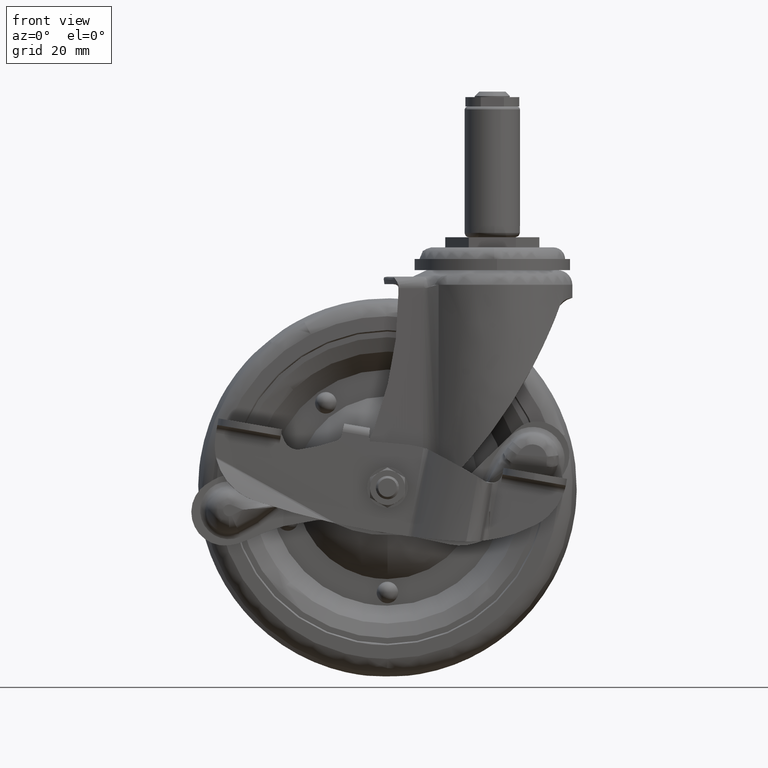
[diagram: clean part render]
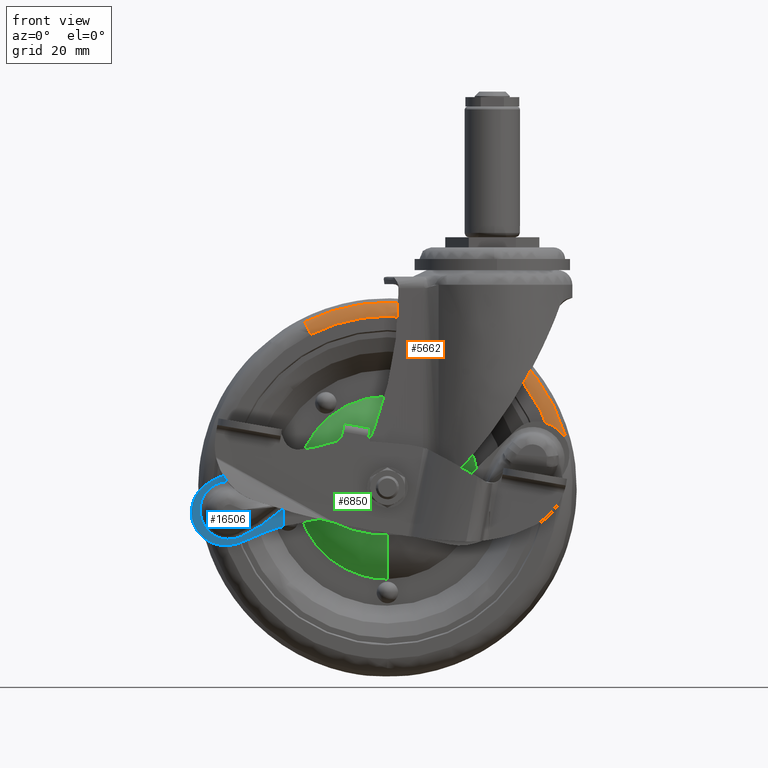
[diagram: same view with three faces highlighted in distinct colors, each labeled with its STEP entity id]
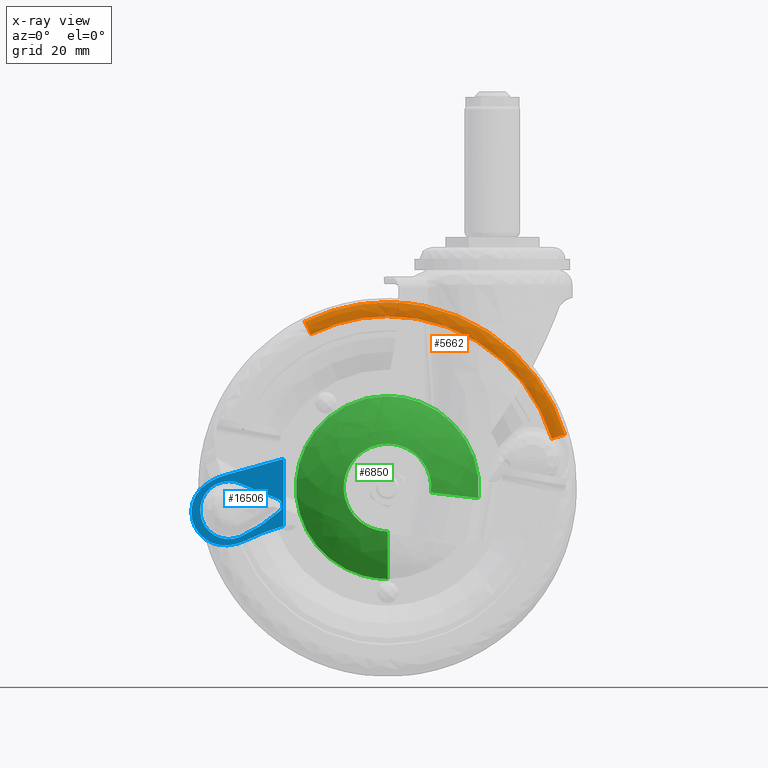
[diagram: x-ray of the same camera — body ghosted, the three highlighted faces saturated]
A machine part, front view with three faces highlighted in distinct colors.
The next image is the same camera in x-ray (body ghosted, the three faces saturated) — at least one of them is partly hidden behind the body in this view.
Their STEP definitions:

[orange] entity #5662 — the highlighted face is a freeform B-spline surface patch.
#5423=CARTESIAN_POINT('',(-64.497286982100661,-9.000000000715319,-29.121572004120289));
#5424=VERTEX_POINT('',#5423);
#5438=CARTESIAN_POINT('',(-36.0,-9.0,-22.382011957491709));
#5439=VERTEX_POINT('',#5438);
#5440=CARTESIAN_POINT('',(-36.0,-9.0,-22.382011957491709));
#5441=CARTESIAN_POINT('',(-51.045590752233466,-9.0,-22.382011957491706));
#5442=CARTESIAN_POINT('',(-64.497286982100661,-9.000000000715319,-29.121572004120296));
#5450=(BOUNDED_CURVE()B_SPLINE_CURVE(2,(#5440,#5441,#5442),.UNSPECIFIED.,.F.,.U.)B_SPLINE_CURVE_WITH_KNOTS((3,3),(0.500000000000000,0.576154610385268),.UNSPECIFIED.)CURVE()GEOMETRIC_REPRESENTATION_ITEM()RATIONAL_B_SPLINE_CURVE((1.0,0.910779324147098,0.875915174757300))REPRESENTATION_ITEM(''));
#5451=EDGE_CURVE('',#5439,#5424,#5450,.T.);
#5453=CARTESIAN_POINT('',(24.979407914093251,-9.000000000585484,-67.867782384672367));
#5454=VERTEX_POINT('',#5453);
#5455=CARTESIAN_POINT('',(24.979407914093255,-9.000000000585484,-67.867782384672381));
#5456=CARTESIAN_POINT('',(11.454080802612422,-9.0,-22.382011957491706));
#5457=CARTESIAN_POINT('',(-36.0,-9.0,-22.382011957491709));
#5465=(BOUNDED_CURVE()B_SPLINE_CURVE(2,(#5455,#5456,#5457),.UNSPECIFIED.,.F.,.U.)B_SPLINE_CURVE_WITH_KNOTS((3,3),(0.298526662064803,0.500000000000000),.UNSPECIFIED.)CURVE()GEOMETRIC_REPRESENTATION_ITEM()RATIONAL_B_SPLINE_CURVE((0.908365862590003,0.763959302188279,1.0))REPRESENTATION_ITEM(''));
#5466=EDGE_CURVE('',#5454,#5439,#5465,.T.);
#5540=CARTESIAN_POINT('',(20.407550364560841,-12.500000000000000,-69.227237622806712));
#5541=VERTEX_POINT('',#5540);
#5542=CARTESIAN_POINT('',(24.979407914093247,-9.000000000585485,-67.867782384672367));
#5543=CARTESIAN_POINT('',(23.924363863457923,-12.499999999917462,-68.181502824512947));
#5544=CARTESIAN_POINT('',(20.407550364560848,-12.500000000000002,-69.227237622806712));
#5552=(BOUNDED_CURVE()B_SPLINE_CURVE(2,(#5542,#5543,#5544),.UNSPECIFIED.,.F.,.U.)B_SPLINE_CURVE_WITH_KNOTS((3,3),(-1.684161954226624,-0.312243930774912),.UNSPECIFIED.)CURVE()GEOMETRIC_REPRESENTATION_ITEM()RATIONAL_B_SPLINE_CURVE((0.901240387114936,0.726972179594655,0.902155872073629))REPRESENTATION_ITEM(''));
#5553=EDGE_CURVE('',#5454,#5541,#5552,.T.);
#5572=CARTESIAN_POINT('',(-62.360737267411167,-12.500000000000000,-33.385977624749259));
#5573=VERTEX_POINT('',#5572);
#5589=CARTESIAN_POINT('',(-64.497286982100661,-9.000000000715319,-29.121572004120285));
#5590=CARTESIAN_POINT('',(-64.004237047657426,-12.499999997344201,-30.105665609368199));
#5591=CARTESIAN_POINT('',(-62.360737267411182,-12.500000000000004,-33.385977624749259));
#5599=(BOUNDED_CURVE()B_SPLINE_CURVE(2,(#5589,#5590,#5591),.UNSPECIFIED.,.F.,.U.)B_SPLINE_CURVE_WITH_KNOTS((3,3),(-1.684161954163533,-0.312243931588529),.UNSPECIFIED.)CURVE()GEOMETRIC_REPRESENTATION_ITEM()RATIONAL_B_SPLINE_CURVE((0.845490514901988,0.682002372882612,0.846349368652953))REPRESENTATION_ITEM(''));
#5600=EDGE_CURVE('',#5424,#5573,#5599,.T.);
#5605=CARTESIAN_POINT('',(25.055707053804252,-8.718326758029756,-67.845094611984450));
#5606=CARTESIAN_POINT('',(6.900613665788685,-8.718326758029756,-6.789387558180201));
#5607=CARTESIAN_POINT('',(-54.155093388015572,-8.718326758029756,-24.944480946195757));
#5608=CARTESIAN_POINT('',(-59.524558392450551,-8.718326758029756,-26.541107098003202));
#5609=CARTESIAN_POINT('',(-64.532933759402326,-8.718326758029754,-29.050398967475168));
#5610=CARTESIAN_POINT('',(24.088798401061197,-12.733445970197851,-68.132607732957084));
#5611=CARTESIAN_POINT('',(6.221218134018271,-12.733445970197849,-8.043809331895890));
#5612=CARTESIAN_POINT('',(-53.867580267042925,-12.733445970197851,-25.911389598938808));
#5613=CARTESIAN_POINT('',(-59.152011743509519,-12.733445970197849,-27.482730782053359));
#5614=CARTESIAN_POINT('',(-64.081071978229289,-12.733445970197852,-29.952284252972131));
#5615=CARTESIAN_POINT('',(20.127400913808597,-12.491450375606691,-69.310540882838438));
#5616=CARTESIAN_POINT('',(3.437753796647032,-12.491450375606691,-13.183139969029847));
#5617=CARTESIAN_POINT('',(-52.689647117161556,-12.491450375606691,-29.872787086191408));
#5618=CARTESIAN_POINT('',(-57.625698627154001,-12.491450375606693,-31.340536465508187));
#5619=CARTESIAN_POINT('',(-62.229807001495246,-12.491450375606689,-33.647282838021724));
#5627=(BOUNDED_SURFACE()B_SPLINE_SURFACE(2,2,((#5605,#5610,#5615),(#5606,#5611,#5616),(#5607,#5612,#5617),(#5608,#5613,#5618),(#5609,#5614,#5619)),.UNSPECIFIED.,.F.,.F.,.U.)B_SPLINE_SURFACE_WITH_KNOTS((3,2,3),(3,3),(0.0,105.537932310919700,118.202472110372200),(0.0,7.205187471859546),.UNSPECIFIED.)GEOMETRIC_REPRESENTATION_ITEM()RATIONAL_B_SPLINE_SURFACE(((0.919521688798256,0.708645109760740,0.920528710436514),(0.650200021597353,0.501087762566505,0.650912093426567),(0.919521688798256,0.708645109760740,0.920528710436514),(0.887203119555566,0.683738251850486,0.888174747250494),(0.862640999533989,0.664809034137964,0.863585727823884)))REPRESENTATION_ITEM('')SURFACE());
#5628=ORIENTED_EDGE('',*,*,#5451,.T.);
#5629=ORIENTED_EDGE('',*,*,#5600,.T.);
#5630=CARTESIAN_POINT('',(-36.0,-12.500000000000000,-27.151707964576509));
#5631=VERTEX_POINT('',#5630);
#5632=CARTESIAN_POINT('',(-36.0,-12.500000000000000,-27.151707964576509));
#5633=CARTESIAN_POINT('',(-49.917565734887262,-12.500000000000005,-27.151707964576502));
#5634=CARTESIAN_POINT('',(-62.360737267411174,-12.499999999999996,-33.385977624749259));
#5642=(BOUNDED_CURVE()B_SPLINE_CURVE(2,(#5632,#5633,#5634),.UNSPECIFIED.,.F.,.U.)B_SPLINE_CURVE_WITH_KNOTS((3,3),(0.500000000000000,0.576154610385368),.UNSPECIFIED.)CURVE()GEOMETRIC_REPRESENTATION_ITEM()RATIONAL_B_SPLINE_CURVE((1.0,0.910779324146980,0.875915174757208))REPRESENTATION_ITEM(''));
#5643=EDGE_CURVE('',#5631,#5573,#5642,.T.);
#5644=ORIENTED_EDGE('',*,*,#5643,.F.);
#5645=CARTESIAN_POINT('',(20.407550364560848,-12.500000000000005,-69.227237622806712));
#5646=CARTESIAN_POINT('',(7.896268337706549,-12.500000000000000,-27.151707964576502));
#5647=CARTESIAN_POINT('',(-36.0,-12.500000000000000,-27.151707964576509));
#5655=(BOUNDED_CURVE()B_SPLINE_CURVE(2,(#5645,#5646,#5647),.UNSPECIFIED.,.F.,.U.)B_SPLINE_CURVE_WITH_KNOTS((3,3),(0.298526662064500,0.500000000000000),.UNSPECIFIED.)CURVE()GEOMETRIC_REPRESENTATION_ITEM()RATIONAL_B_SPLINE_CURVE((0.908365862590437,0.763959302187924,1.0))REPRESENTATION_ITEM(''));
#5656=EDGE_CURVE('',#5541,#5631,#5655,.T.);
#5657=ORIENTED_EDGE('',*,*,#5656,.F.);
#5658=ORIENTED_EDGE('',*,*,#5553,.F.);
#5659=ORIENTED_EDGE('',*,*,#5466,.T.);
#5660=EDGE_LOOP('',(#5628,#5629,#5644,#5657,#5658,#5659));
#5661=FACE_OUTER_BOUND('',#5660,.T.);
#5662=ADVANCED_FACE('',(#5661),#5627,.T.);

[blue] entity #16506 — the highlighted face is a freeform B-spline surface patch.
#8859=CARTESIAN_POINT('',(-73.718794983608205,-14.684033563769120,-88.894457982147799));
#8860=VERTEX_POINT('',#8859);
#8874=CARTESIAN_POINT('',(-79.569680932211199,-15.215931564920400,-86.493897056049192));
#8875=VERTEX_POINT('',#8874);
#8876=CARTESIAN_POINT('',(-79.569680932211199,-15.215931564920400,-86.493897056049192));
#8877=CARTESIAN_POINT('',(-73.718794983608205,-14.684033563769120,-88.894457982147799));
#8878=QUASI_UNIFORM_CURVE('',1,(#8876,#8877),.UNSPECIFIED.,.F.,.U.);
#8879=EDGE_CURVE('',#8875,#8860,#8878,.T.);
#8952=CARTESIAN_POINT('',(-86.795488762817598,-15.872822294899599,-83.558419318397299));
#8953=VERTEX_POINT('',#8952);
#8981=CARTESIAN_POINT('',(-86.795488762817641,-15.872822294899571,-83.558419318397384));
#8982=CARTESIAN_POINT('',(-83.188695259517772,-15.544932421156831,-85.009051092302855));
#8983=CARTESIAN_POINT('',(-79.569680932211185,-15.215931564920380,-86.493897056049221));
#8991=(BOUNDED_CURVE()B_SPLINE_CURVE(2,(#8981,#8982,#8983),.UNSPECIFIED.,.F.,.U.)CURVE()GEOMETRIC_REPRESENTATION_ITEM()QUASI_UNIFORM_CURVE()RATIONAL_B_SPLINE_CURVE((1.0,0.999155433929784,1.0))REPRESENTATION_ITEM(''));
#8992=EDGE_CURVE('',#8953,#8875,#8991,.T.);
#9077=CARTESIAN_POINT('',(-72.983285543542593,-14.617169159910400,-93.054666504507694));
#9078=VERTEX_POINT('',#9077);
#9092=CARTESIAN_POINT('',(-73.718794983608319,-14.684033563769150,-88.894457982147799));
#9093=CARTESIAN_POINT('',(-72.445533718338098,-14.568282696654357,-89.416864549114351));
#9094=CARTESIAN_POINT('',(-72.205931136643102,-14.546500673317411,-90.772111195925348));
#9095=CARTESIAN_POINT('',(-71.966328554948092,-14.524718649980477,-92.127357842736345));
#9096=CARTESIAN_POINT('',(-72.983285543542593,-14.617169159910400,-93.054666504507694));
#9104=(BOUNDED_CURVE()B_SPLINE_CURVE(2,(#9092,#9093,#9094,#9095,#9096),.UNSPECIFIED.,.F.,.U.)B_SPLINE_CURVE_WITH_KNOTS((3,2,3),(0.0,0.500000000000000,1.0),.UNSPECIFIED.)CURVE()GEOMETRIC_REPRESENTATION_ITEM()RATIONAL_B_SPLINE_CURVE((1.0,0.876028798369927,1.0,0.876028798369927,1.0))REPRESENTATION_ITEM(''));
#9105=EDGE_CURVE('',#8860,#9078,#9104,.T.);
#9424=CARTESIAN_POINT('',(-86.502124005019397,-15.846152807637001,-101.888053421124990));
#9425=VERTEX_POINT('',#9424);
#9442=CARTESIAN_POINT('',(-86.502124005019397,-15.846152807637001,-101.888053421124990));
#9443=CARTESIAN_POINT('',(-86.876736583095720,-15.880208450361071,-102.052962688001100));
#9444=CARTESIAN_POINT('',(-87.258240291538911,-15.914890558632390,-102.193169583015500));
#9445=CARTESIAN_POINT('',(-88.034635705399779,-15.985471864158299,-102.425583377874900));
#9446=CARTESIAN_POINT('',(-88.429528573737755,-16.021371167132749,-102.517788278129900));
#9447=CARTESIAN_POINT('',(-89.032081073962061,-16.076148592854839,-102.619481553386900));
#9448=CARTESIAN_POINT('',(-89.235204171976278,-16.094614303991669,-102.647293392677500));
#9449=CARTESIAN_POINT('',(-89.640204539545962,-16.131432469286320,-102.689962256502100));
#9450=CARTESIAN_POINT('',(-89.842477633537669,-16.149820907435000,-102.704922160538300));
#9451=CARTESIAN_POINT('',(-90.448629332651151,-16.204925532612300,-102.731062476650710));
#9452=CARTESIAN_POINT('',(-90.851842800816115,-16.241581252726871,-102.723572150543700));
#9453=CARTESIAN_POINT('',(-91.656505744907676,-16.314732330242741,-102.659075324394910));
#9454=CARTESIAN_POINT('',(-92.057955441143093,-16.351227707672109,-102.602075008539000));
#9455=CARTESIAN_POINT('',(-92.859020931901412,-16.424051744419451,-102.436595807817700));
#9456=CARTESIAN_POINT('',(-93.250618325102351,-16.459651459151441,-102.329745667607500));
#9457=CARTESIAN_POINT('',(-94.015385242609042,-16.529175630079010,-102.070006275160200));
#9458=CARTESIAN_POINT('',(-94.388768176760550,-16.563119487143361,-101.917066309803500));
#9459=CARTESIAN_POINT('',(-94.935275361228165,-16.612801891071019,-101.652880684141000));
#9460=CARTESIAN_POINT('',(-95.115176986261346,-16.629156562072911,-101.559006884438400));
#9461=CARTESIAN_POINT('',(-95.470355995417862,-16.661445519109641,-101.359406366781500));
#9462=CARTESIAN_POINT('',(-95.646100971519104,-16.677422313448449,-101.253340372070300));
#9463=CARTESIAN_POINT('',(-96.159538709564742,-16.724098408142670,-100.921318031646390));
#9464=CARTESIAN_POINT('',(-96.485318827841297,-16.753714742360831,-100.680722798303710));
#9465=CARTESIAN_POINT('',(-97.104800508634540,-16.810031182410800,-100.162139700769200));
#9466=CARTESIAN_POINT('',(-97.398500512013968,-16.836731146503070,-99.884150019156280));
#9467=CARTESIAN_POINT('',(-97.814595816240285,-16.874557941034809,-99.438659674717059));
#9468=CARTESIAN_POINT('',(-97.949207256836829,-16.886795328127011,-99.285398855089497));
#9469=CARTESIAN_POINT('',(-98.210046026617547,-16.910507911398650,-98.969104207804079));
#9470=CARTESIAN_POINT('',(-98.334959988333026,-16.921863710697419,-98.807657975516534));
#9471=CARTESIAN_POINT('',(-98.693318008006088,-16.954441668298209,-98.314031358512977));
#9472=CARTESIAN_POINT('',(-98.910569164617755,-16.974191746656370,-97.972438230887363));
#9473=CARTESIAN_POINT('',(-99.302515563688701,-17.009823189151689,-97.264669210795006));
#9474=CARTESIAN_POINT('',(-99.477212445298591,-17.025704702302331,-96.898494265196788));
#9475=CARTESIAN_POINT('',(-99.706447663542164,-17.046544239331130,-96.330278827194022));
#9476=CARTESIAN_POINT('',(-99.777525093805266,-17.053005815136238,-96.137157455083255));
#9477=CARTESIAN_POINT('',(-99.906784510494390,-17.064756655260439,-95.749515729699851));
#9478=CARTESIAN_POINT('',(-99.965192087170237,-17.070066427756242,-95.554528286354198));
#9479=CARTESIAN_POINT('',(-100.122119147353000,-17.084332504786449,-94.966135721209753));
#9480=CARTESIAN_POINT('',(-100.202409872590100,-17.091631651725869,-94.569312909481553));
#9481=CARTESIAN_POINT('',(-100.314628802853410,-17.101833358821629,-93.766599850062661));
#9482=CARTESIAN_POINT('',(-100.346563166891100,-17.104736478887361,-93.360710757118284));
#9483=CARTESIAN_POINT('',(-100.360137672009800,-17.105970523133429,-92.539502962434298));
#9484=CARTESIAN_POINT('',(-100.341651888566600,-17.104289999645282,-92.131021200484710));
#9485=CARTESIAN_POINT('',(-100.276623168276800,-17.098378305819178,-91.521764458767549));
#9486=CARTESIAN_POINT('',(-100.248712586901500,-17.095840983681139,-91.319239417606525));
#9487=CARTESIAN_POINT('',(-100.180310006351310,-17.089622575701931,-90.915320550309545));
#9488=CARTESIAN_POINT('',(-100.139722064879710,-17.085932767845609,-90.713672870263494));
#9489=CARTESIAN_POINT('',(-100.000468058812000,-17.073273329919392,-90.117109308082192));
#9490=CARTESIAN_POINT('',(-99.884088557483537,-17.062693389603449,-89.728380887494822));
#9491=CARTESIAN_POINT('',(-99.605458129827042,-17.037363385082379,-88.968421611426436));
#9492=CARTESIAN_POINT('',(-99.443205963137814,-17.022613208117299,-88.597191229078675));
#9493=CARTESIAN_POINT('',(-99.211168729600487,-17.001518942770929,-88.144299935339120));
#9494=CARTESIAN_POINT('',(-99.163294991774464,-16.997166790689850,-88.054280990462701));
#9495=CARTESIAN_POINT('',(-99.064579738869526,-16.988192688961579,-87.875375153522967));
#9496=CARTESIAN_POINT('',(-99.013667752026038,-16.983564332799009,-87.786370288585061));
#9497=CARTESIAN_POINT('',(-98.856908691043031,-16.969313528402619,-87.521909254792249));
#9498=CARTESIAN_POINT('',(-98.747504080594197,-16.959367668215680,-87.349745437444653));
#9499=CARTESIAN_POINT('',(-98.404949512810845,-16.928226386110762,-86.845384341047350));
#9500=CARTESIAN_POINT('',(-98.157511232924918,-16.905732027540829,-86.525273082467180));
#9501=CARTESIAN_POINT('',(-97.625044623161443,-16.857326037764079,-85.916846747959994));
#9502=CARTESIAN_POINT('',(-97.340018627599122,-16.831414618767450,-85.628529697512903));
#9503=CARTESIAN_POINT('',(-96.959510112060897,-16.796822982455659,-85.288625376126220));
#9504=CARTESIAN_POINT('',(-96.882077224807475,-16.789783638616932,-85.221576799188540));
#9505=CARTESIAN_POINT('',(-96.725301843692904,-16.775531350574209,-85.090032694899705));
#9506=CARTESIAN_POINT('',(-96.646098436154389,-16.768331050564228,-85.025646944706054));
#9507=CARTESIAN_POINT('',(-96.406074206394749,-16.746510695637038,-84.836592272458148));
#9508=CARTESIAN_POINT('',(-96.242841717286723,-16.731671398572939,-84.716021951495676));
#9509=CARTESIAN_POINT('',(-95.743671857553551,-16.686292381965981,-84.370409214313383));
#9510=CARTESIAN_POINT('',(-95.398296859972646,-16.654894697499969,-84.161405940296760));
#9511=CARTESIAN_POINT('',(-94.861396249553835,-16.606085617301289,-83.879916194891607));
#9512=CARTESIAN_POINT('',(-94.679280974598754,-16.589529705670358,-83.791436958776387));
#9513=CARTESIAN_POINT('',(-94.401311599975131,-16.564259796798030,-83.666869638830804));
#9514=CARTESIAN_POINT('',(-94.307855157789362,-16.555763768123061,-83.626706762735211));
#9515=CARTESIAN_POINT('',(-94.119322808840053,-16.538624486920281,-83.549133272609268));
#9516=CARTESIAN_POINT('',(-94.024093801734168,-16.529967316198409,-83.511666097508538));
#9517=CARTESIAN_POINT('',(-93.545774015062250,-16.486483758207910,-83.332032761846662));
#9518=CARTESIAN_POINT('',(-93.158128046235404,-16.451243263386338,-83.213511140863062));
#9519=CARTESIAN_POINT('',(-92.373217280634478,-16.379887836024970,-83.025013764137654));
#9520=CARTESIAN_POINT('',(-91.975951445189992,-16.343772809060699,-82.955043250526387));
#9521=CARTESIAN_POINT('',(-91.372774959072856,-16.288938657425302,-82.886817926377276));
#9522=CARTESIAN_POINT('',(-91.170499835825140,-16.270550034799040,-82.870214744767210));
#9523=CARTESIAN_POINT('',(-90.865223229292710,-16.242797653665789,-82.854717115329237));
#9524=CARTESIAN_POINT('',(-90.762980846196214,-16.233502904173211,-82.851118054835354));
#9525=CARTESIAN_POINT('',(-90.558781916732514,-16.214939390309990,-82.847119141247745));
#9526=CARTESIAN_POINT('',(-90.456908033568240,-16.205678140765809,-82.846714356516685));
#9527=CARTESIAN_POINT('',(-89.948651320742968,-16.159473047725481,-82.852556307724015));
#9528=CARTESIAN_POINT('',(-89.545593837469113,-16.122831508036331,-82.882310447388988));
#9529=CARTESIAN_POINT('',(-88.746397492048544,-16.050177393361938,-82.990727562410200));
#9530=CARTESIAN_POINT('',(-88.350258769145540,-16.014164831035188,-83.069391522102507));
#9531=CARTESIAN_POINT('',(-87.859496929457265,-15.969550178850110,-83.198907520489939));
#9532=CARTESIAN_POINT('',(-87.761565925727908,-15.960647372404731,-83.226375579045254));
#9533=CARTESIAN_POINT('',(-87.566152075936515,-15.942882501064840,-83.284479794149576));
#9534=CARTESIAN_POINT('',(-87.468567441307428,-15.934011182676789,-83.315150583274516));
#9535=CARTESIAN_POINT('',(-87.177343072162330,-15.907536275936931,-83.411701460585363));
#9536=CARTESIAN_POINT('',(-86.985341265169055,-15.890081589885250,-83.482061738575780));
#9537=CARTESIAN_POINT('',(-86.795488762817598,-15.872822294899599,-83.558419318397299));
#9538=B_SPLINE_CURVE_WITH_KNOTS('',3,(#9442,#9443,#9444,#9445,#9446,#9447,#9448,#9449,#9450,#9451,#9452,#9453,#9454,#9455,#9456,#9457,#9458,#9459,#9460,#9461,#9462,#9463,#9464,#9465,#9466,#9467,#9468,#9469,#9470,#9471,#9472,#9473,#9474,#9475,#9476,#9477,#9478,#9479,#9480,#9481,#9482,#9483,#9484,#9485,#9486,#9487,#9488,#9489,#9490,#9491,#9492,#9493,#9494,#9495,#9496,#9497,#9498,#9499,#9500,#9501,#9502,#9503,#9504,#9505,#9506,#9507,#9508,#9509,#9510,#9511,#9512,#9513,#9514,#9515,#9516,#9517,#9518,#9519,#9520,#9521,#9522,#9523,#9524,#9525,#9526,#9527,#9528,#9529,#9530,#9531,#9532,#9533,#9534,#9535,#9536,#9537),.UNSPECIFIED.,.F.,.U.,(4,2,2,2,2,2,2,2,2,2,2,2,2,2,2,2,2,2,2,2,2,2,2,2,2,2,2,2,2,2,2,2,2,2,2,2,2,2,2,2,2,2,2,2,2,2,2,4),(0.0,0.031250000000000,0.062500000000001,0.078125000000001,0.093750000000002,0.125000000000003,0.156250000000004,0.187500000000006,0.218750000000007,0.234375000000008,0.250000000000009,0.281250000000011,0.312500000000012,0.328125000000012,0.343750000000013,0.375000000000014,0.406250000000016,0.421875000000016,0.437500000000016,0.468750000000017,0.500000000000017,0.531250000000018,0.546875000000018,0.562500000000018,0.593750000000020,0.625000000000021,0.632812500000021,0.640625000000020,0.656250000000020,0.687500000000018,0.718750000000017,0.726562500000017,0.734375000000017,0.750000000000016,0.781250000000013,0.796875000000012,0.804687500000012,0.812500000000011,0.843750000000011,0.875000000000011,0.890625000000011,0.898437500000010,0.906250000000009,0.937500000000006,0.968750000000003,0.976562500000002,0.984375000000001,1.0),.UNSPECIFIED.);
#9539=EDGE_CURVE('',#9425,#8953,#9538,.T.);
#9594=CARTESIAN_POINT('',(-79.569680932211298,-15.215931564920400,-98.141558755063713));
#9595=VERTEX_POINT('',#9594);
#9609=CARTESIAN_POINT('',(-72.983285543542522,-14.617169159910359,-93.054666504507694));
#9610=CARTESIAN_POINT('',(-76.068271704295810,-14.897622066854444,-95.867700310652396));
#9611=CARTESIAN_POINT('',(-79.569680932211270,-15.215931564920391,-98.141558755063713));
#9619=(BOUNDED_CURVE()B_SPLINE_CURVE(2,(#9609,#9610,#9611),.UNSPECIFIED.,.F.,.U.)CURVE()GEOMETRIC_REPRESENTATION_ITEM()QUASI_UNIFORM_CURVE()RATIONAL_B_SPLINE_CURVE((1.0,0.996666055392773,1.0))REPRESENTATION_ITEM(''));
#9620=EDGE_CURVE('',#9078,#9595,#9619,.T.);
#9688=CARTESIAN_POINT('',(-79.569680932211298,-15.215931564920400,-98.141558755063713));
#9689=CARTESIAN_POINT('',(-80.675022253874531,-15.316417003321909,-98.859381075911656));
#9690=CARTESIAN_POINT('',(-81.805441990158116,-15.419182294505680,-99.530415263053314));
#9691=CARTESIAN_POINT('',(-84.116182082196858,-15.629249290672130,-100.779385373702100));
#9692=CARTESIAN_POINT('',(-85.296501609958810,-15.736550920382800,-101.357322841974200));
#9693=CARTESIAN_POINT('',(-86.502124005019397,-15.846152807637001,-101.888053421124990));
#9694=B_SPLINE_CURVE_WITH_KNOTS('',3,(#9688,#9689,#9690,#9691,#9692,#9693),.UNSPECIFIED.,.F.,.U.,(4,2,4),(0.0,0.500000000000000,1.0),.UNSPECIFIED.);
#9695=EDGE_CURVE('',#9595,#9425,#9694,.T.);
#13754=CARTESIAN_POINT('',(-84.311057709022393,-15.646965232717800,-103.039210953001400));
#13755=VERTEX_POINT('',#13754);
#13786=CARTESIAN_POINT('',(-71.690228999999903,-14.499618724484460,-98.247703269983504));
#13787=VERTEX_POINT('',#13786);
#13793=CARTESIAN_POINT('',(-84.311057709022393,-15.646965232717800,-103.039210953001400));
#13794=CARTESIAN_POINT('',(-78.235527915198290,-15.094645091519116,-100.024771437398210));
#13795=CARTESIAN_POINT('',(-71.690228999999903,-14.499618724484460,-98.247703269983504));
#13803=(BOUNDED_CURVE()B_SPLINE_CURVE(2,(#13793,#13794,#13795),.UNSPECIFIED.,.F.,.U.)CURVE()GEOMETRIC_REPRESENTATION_ITEM()QUASI_UNIFORM_CURVE()RATIONAL_B_SPLINE_CURVE((1.0,0.995228255576617,1.0))REPRESENTATION_ITEM(''));
#13804=EDGE_CURVE('',#13755,#13787,#13803,.T.);
#14083=CARTESIAN_POINT('',(-91.687982955768007,-16.317593890985101,-80.724560175715098));
#14084=VERTEX_POINT('',#14083);
#14085=CARTESIAN_POINT('',(-71.690228999999903,-14.499618724484460,-75.168450951516505));
#14086=VERTEX_POINT('',#14085);
#14087=CARTESIAN_POINT('',(-91.687982955768007,-16.317593890985101,-80.724560175715098));
#14088=CARTESIAN_POINT('',(-71.690228999999903,-14.499618724484460,-75.168450951516505));
#14089=QUASI_UNIFORM_CURVE('',1,(#14087,#14088),.UNSPECIFIED.,.F.,.U.);
#14090=EDGE_CURVE('',#14084,#14086,#14089,.T.);
#14236=CARTESIAN_POINT('',(-91.044065606923411,-16.259056029579899,-104.875300552141000));
#14237=VERTEX_POINT('',#14236);
#14238=CARTESIAN_POINT('',(-98.751255690375899,-16.959708723187749,-84.190973292463809));
#14239=VERTEX_POINT('',#14238);
#14240=CARTESIAN_POINT('',(-91.044065606923397,-16.259056029579909,-104.875300552140900));
#14241=CARTESIAN_POINT('',(-99.637853834555514,-17.040308445154054,-105.494103958834980));
#14242=CARTESIAN_POINT('',(-102.646223831384800,-17.313796255734090,-97.420330137399176));
#14243=CARTESIAN_POINT('',(-105.654593828214020,-17.587284066314133,-89.346556315963340));
#14244=CARTESIAN_POINT('',(-98.751255690376041,-16.959708723187831,-84.190973292463809));
#14252=(BOUNDED_CURVE()B_SPLINE_CURVE(2,(#14240,#14241,#14242,#14243,#14244),.UNSPECIFIED.,.F.,.U.)B_SPLINE_CURVE_WITH_KNOTS((3,2,3),(0.0,0.500000000000000,1.0),.UNSPECIFIED.)CURVE()GEOMETRIC_REPRESENTATION_ITEM()RATIONAL_B_SPLINE_CURVE((1.0,0.800299259539959,1.0,0.800299259539959,1.0))REPRESENTATION_ITEM(''));
#14253=EDGE_CURVE('',#14237,#14239,#14252,.T.);
#14283=CARTESIAN_POINT('',(-84.311057709022393,-15.646965232717800,-103.039210953001400));
#14284=CARTESIAN_POINT('',(-87.496863439285846,-15.936583542640285,-104.619882063429740));
#14285=CARTESIAN_POINT('',(-91.044065606923411,-16.259056029579899,-104.875300552141000));
#14293=(BOUNDED_CURVE()B_SPLINE_CURVE(2,(#14283,#14284,#14285),.UNSPECIFIED.,.F.,.U.)CURVE()GEOMETRIC_REPRESENTATION_ITEM()QUASI_UNIFORM_CURVE()RATIONAL_B_SPLINE_CURVE((1.0,0.981174400910606,1.0))REPRESENTATION_ITEM(''));
#14294=EDGE_CURVE('',#13755,#14237,#14293,.T.);
#14316=CARTESIAN_POINT('',(-98.751255690375899,-16.959708723187749,-84.190973292463809));
#14317=CARTESIAN_POINT('',(-95.544388477913969,-16.668175735662452,-81.796008004890481));
#14318=CARTESIAN_POINT('',(-91.687982955768007,-16.317593890985101,-80.724560175715098));
#14326=(BOUNDED_CURVE()B_SPLINE_CURVE(2,(#14316,#14317,#14318),.UNSPECIFIED.,.F.,.U.)CURVE()GEOMETRIC_REPRESENTATION_ITEM()QUASI_UNIFORM_CURVE()RATIONAL_B_SPLINE_CURVE((1.0,0.982893508843921,1.0))REPRESENTATION_ITEM(''));
#14327=EDGE_CURVE('',#14239,#14084,#14326,.T.);
#16456=CARTESIAN_POINT('',(-71.690228999999903,-14.499618724484460,-75.168450951516505));
#16457=CARTESIAN_POINT('',(-71.690228999999903,-14.499618724484460,-98.247703269983504));
#16458=QUASI_UNIFORM_CURVE('',1,(#16456,#16457),.UNSPECIFIED.,.F.,.U.);
#16459=EDGE_CURVE('',#14086,#13787,#16458,.T.);
#16485=CARTESIAN_POINT('',(-70.107886957597401,-14.355769643014570,-106.389218050464610));
#16486=CARTESIAN_POINT('',(-104.951142376601100,-17.523334021089070,-106.389218050464610));
#16487=CARTESIAN_POINT('',(-70.107886957597401,-14.355769643014570,-73.683162989314553));
#16488=CARTESIAN_POINT('',(-104.951142376601100,-17.523334021089070,-73.683162989314553));
#16489=B_SPLINE_SURFACE_WITH_KNOTS('',1,1,((#16485,#16487),(#16486,#16488)),.UNSPECIFIED.,.F.,.F.,.U.,(2,2),(2,2),(0.0,34.986939167111743),(0.0,32.706055061150067),.UNSPECIFIED.);
#16490=ORIENTED_EDGE('',*,*,#14090,.F.);
#16491=ORIENTED_EDGE('',*,*,#14327,.F.);
#16492=ORIENTED_EDGE('',*,*,#14253,.F.);
#16493=ORIENTED_EDGE('',*,*,#14294,.F.);
#16494=ORIENTED_EDGE('',*,*,#13804,.T.);
#16495=ORIENTED_EDGE('',*,*,#16459,.F.);
#16496=EDGE_LOOP('',(#16490,#16491,#16492,#16493,#16494,#16495));
#16497=FACE_OUTER_BOUND('',#16496,.T.);
#16498=ORIENTED_EDGE('',*,*,#9539,.T.);
#16499=ORIENTED_EDGE('',*,*,#8992,.T.);
#16500=ORIENTED_EDGE('',*,*,#8879,.T.);
#16501=ORIENTED_EDGE('',*,*,#9105,.T.);
#16502=ORIENTED_EDGE('',*,*,#9620,.T.);
#16503=ORIENTED_EDGE('',*,*,#9695,.T.);
#16504=EDGE_LOOP('',(#16498,#16499,#16500,#16501,#16502,#16503));
#16505=FACE_BOUND('',#16504,.T.);
#16506=ADVANCED_FACE('',(#16497,#16505),#16489,.F.);

[green] entity #6850 — the highlighted face is a freeform B-spline surface patch.
#6700=CARTESIAN_POINT('',(-22.002228801804634,-13.475668255479523,-87.627312311242321));
#6701=CARTESIAN_POINT('',(-11.331719032963777,-11.347321792059686,-88.867670194822253));
#6702=CARTESIAN_POINT('',(-4.185463602780041,-3.090863223911938,-89.698362865831101));
#6703=CARTESIAN_POINT('',(-21.907976297165000,-13.475668255479521,-86.816479982275936));
#6704=CARTESIAN_POINT('',(-11.165617784888138,-11.347321792059683,-87.438739872637939));
#6705=CARTESIAN_POINT('',(-3.971243803289859,-3.090863223911938,-87.855479861337457));
#6706=CARTESIAN_POINT('',(-21.907976297165000,-13.475668255479521,-86.000187999999994));
#6707=CARTESIAN_POINT('',(-11.165617784888139,-11.347321792059681,-86.000187999999980));
#6708=CARTESIAN_POINT('',(-3.971243803289859,-3.090863223911938,-86.000188000000009));
#6709=CARTESIAN_POINT('',(-21.907976297164982,-13.475668255479519,-71.908164297165001));
#6710=CARTESIAN_POINT('',(-11.165617784888134,-11.347321792059686,-61.165805784888150));
#6711=CARTESIAN_POINT('',(-3.971243803289856,-3.090863223911939,-53.971431803289860));
#6712=CARTESIAN_POINT('',(-36.0,-13.475668255479521,-71.908164297164973));
#6713=CARTESIAN_POINT('',(-36.0,-11.347321792059681,-61.165805784888128));
#6714=CARTESIAN_POINT('',(-36.000000000000007,-3.090863223911938,-53.971431803289867));
#6715=CARTESIAN_POINT('',(-50.092023702835007,-13.475668255479519,-71.908164297165001));
#6716=CARTESIAN_POINT('',(-60.834382215111859,-11.347321792059686,-61.165805784888150));
#6717=CARTESIAN_POINT('',(-68.028756196710148,-3.090863223911939,-53.971431803289860));
#6718=CARTESIAN_POINT('',(-50.092023702835007,-13.475668255479521,-86.000187999999994));
#6719=CARTESIAN_POINT('',(-60.834382215111845,-11.347321792059681,-86.000187999999980));
#6720=CARTESIAN_POINT('',(-68.028756196710134,-3.090863223911938,-86.000188000000009));
#6721=CARTESIAN_POINT('',(-50.092023702835007,-13.475668255479519,-100.092211702835030));
#6722=CARTESIAN_POINT('',(-60.834382215111859,-11.347321792059686,-110.834570215111870));
#6723=CARTESIAN_POINT('',(-68.028756196710148,-3.090863223911939,-118.028944196710140));
#6724=CARTESIAN_POINT('',(-36.0,-13.475668255479521,-100.092211702835000));
#6725=CARTESIAN_POINT('',(-36.0,-11.347321792059681,-110.834570215111870));
#6726=CARTESIAN_POINT('',(-36.000000000000007,-3.090863223911938,-118.028944196710200));
#6734=(BOUNDED_SURFACE()B_SPLINE_SURFACE(2,2,((#6700,#6703,#6706,#6709,#6712,#6715,#6718,#6721,#6724),(#6701,#6704,#6707,#6710,#6713,#6716,#6719,#6722,#6725),(#6702,#6705,#6708,#6711,#6714,#6717,#6720,#6723,#6726)),.UNSPECIFIED.,.F.,.F.,.U.)B_SPLINE_SURFACE_WITH_KNOTS((3,3),(3,2,2,2,3),(0.0,21.308457575354659),(0.0,4.245357579187179,57.312338389661797,110.379319200136390,163.446300010611000),.UNSPECIFIED.)GEOMETRIC_REPRESENTATION_ITEM()RATIONAL_B_SPLINE_SURFACE(((0.877435756052739,0.895483943247928,0.916969879531284,0.648395619960382,0.916969879531284,0.648395619960382,0.916969879531284,0.648395619960382,0.916969879531284),(0.853644063964702,0.871202874120566,0.892106218713589,0.630814356791068,0.892106218713589,0.630814356791068,0.892106218713589,0.630814356791068,0.892106218713589),(0.927437940974331,0.946514635142719,0.969224984440751,0.685345558993481,0.969224984440751,0.685345558993481,0.969224984440751,0.685345558993481,0.969224984440751)))REPRESENTATION_ITEM('')SURFACE());
#6735=CARTESIAN_POINT('',(-21.061211942752511,-13.273047429477989,-87.736698058221549));
#6736=VERTEX_POINT('',#6735);
#6737=CARTESIAN_POINT('',(-36.0,-13.273047055400760,-70.960811244168454));
#6738=VERTEX_POINT('',#6737);
#6739=CARTESIAN_POINT('',(-21.061211942752514,-13.273047429477984,-87.736698058221549));
#6740=CARTESIAN_POINT('',(-20.960623244168449,-13.273047055400763,-86.871356369290467));
#6741=CARTESIAN_POINT('',(-20.960623244168449,-13.273047055400760,-86.000188000000009));
#6742=CARTESIAN_POINT('',(-20.960623244168445,-13.273047055400758,-70.960811244168454));
#6743=CARTESIAN_POINT('',(-36.0,-13.273047055400760,-70.960811244168454));
#6751=(BOUNDED_CURVE()B_SPLINE_CURVE(2,(#6739,#6740,#6741,#6742,#6743),.UNSPECIFIED.,.F.,.U.)B_SPLINE_CURVE_WITH_KNOTS((3,2,3),(0.229999999964273,0.250000000000000,0.500000000000000),.UNSPECIFIED.)CURVE()GEOMETRIC_REPRESENTATION_ITEM()RATIONAL_B_SPLINE_CURVE((0.956886118120340,0.976568542453067,1.0,0.707106781186548,1.0))REPRESENTATION_ITEM(''));
#6752=EDGE_CURVE('',#6736,#6738,#6751,.T.);
#6753=ORIENTED_EDGE('',*,*,#6752,.F.);
#6754=CARTESIAN_POINT('',(-4.794796014678429,-3.774815623378911,-89.627533828644687));
#6755=VERTEX_POINT('',#6754);
#6756=CARTESIAN_POINT('',(-21.061211942752507,-13.273047429477984,-87.736698058221549));
#6757=CARTESIAN_POINT('',(-11.469924675100852,-11.054739566699395,-88.851605553295528));
#6758=CARTESIAN_POINT('',(-4.794796014678429,-3.774815623378912,-89.627533828644687));
#6766=(BOUNDED_CURVE()B_SPLINE_CURVE(2,(#6756,#6757,#6758),.UNSPECIFIED.,.F.,.U.)B_SPLINE_CURVE_WITH_KNOTS((3,3),(0.131290469209559,0.293411198918634),.UNSPECIFIED.)CURVE()GEOMETRIC_REPRESENTATION_ITEM()RATIONAL_B_SPLINE_CURVE((0.875476070298029,0.857874517098338,0.920936711103440))REPRESENTATION_ITEM(''));
#6767=EDGE_CURVE('',#6736,#6755,#6766,.T.);
#6768=ORIENTED_EDGE('',*,*,#6767,.T.);
#6769=CARTESIAN_POINT('',(-36.0,-3.774815623259490,-54.584867000000003));
#6770=VERTEX_POINT('',#6769);
#6771=CARTESIAN_POINT('',(-4.794796014678430,-3.774815623378912,-89.627533828644687));
#6772=CARTESIAN_POINT('',(-4.584678999999995,-3.774815623259490,-87.819946515634072));
#6773=CARTESIAN_POINT('',(-4.584678999999994,-3.774815623259490,-86.000188000000009));
#6774=CARTESIAN_POINT('',(-4.584678999999995,-3.774815623259489,-54.584867000000003));
#6775=CARTESIAN_POINT('',(-36.0,-3.774815623259490,-54.584867000000003));
#6783=(BOUNDED_CURVE()B_SPLINE_CURVE(2,(#6771,#6772,#6773,#6774,#6775),.UNSPECIFIED.,.F.,.U.)B_SPLINE_CURVE_WITH_KNOTS((3,2,3),(0.229999999996425,0.250000000000000,0.500000000000000),.UNSPECIFIED.)CURVE()GEOMETRIC_REPRESENTATION_ITEM()RATIONAL_B_SPLINE_CURVE((0.956886118183623,0.976568542490735,1.0,0.707106781186548,1.0))REPRESENTATION_ITEM(''));
#6784=EDGE_CURVE('',#6755,#6770,#6783,.T.);
#6785=ORIENTED_EDGE('',*,*,#6784,.T.);
#6786=CARTESIAN_POINT('',(-36.0,-3.774811589469485,-117.415512723577610));
#6787=VERTEX_POINT('',#6786);
#6788=CARTESIAN_POINT('',(-36.0,-3.774815623259490,-54.584867000000003));
#6789=CARTESIAN_POINT('',(-67.415321000000006,-3.774815623259489,-54.584867000000003));
#6790=CARTESIAN_POINT('',(-67.415321000000006,-3.774813606364488,-86.000189861788826));
#6791=CARTESIAN_POINT('',(-67.415321000000006,-3.774811589469485,-117.415512723577620));
#6792=CARTESIAN_POINT('',(-36.0,-3.774811589469485,-117.415512723577610));
#6800=(BOUNDED_CURVE()B_SPLINE_CURVE(2,(#6788,#6789,#6790,#6791,#6792),.UNSPECIFIED.,.F.,.U.)B_SPLINE_CURVE_WITH_KNOTS((3,2,3),(0.500000000000000,0.750000000000000,1.0),.UNSPECIFIED.)CURVE()GEOMETRIC_REPRESENTATION_ITEM()RATIONAL_B_SPLINE_CURVE((1.0,0.707106781186548,1.0,0.707106781186548,1.0))REPRESENTATION_ITEM(''));
#6801=EDGE_CURVE('',#6770,#6787,#6800,.T.);
#6802=ORIENTED_EDGE('',*,*,#6801,.T.);
#6803=CARTESIAN_POINT('',(-36.0,-13.273049166739590,-101.039557280227800));
#6804=VERTEX_POINT('',#6803);
#6805=CARTESIAN_POINT('',(-36.000000000000007,-13.273049166739586,-101.039557280227810));
#6806=CARTESIAN_POINT('',(-36.000000000000007,-11.054742016498238,-110.695434098718200));
#6807=CARTESIAN_POINT('',(-35.999999999999993,-3.774811589469485,-117.415512723577620));
#6815=(BOUNDED_CURVE()B_SPLINE_CURVE(2,(#6805,#6806,#6807),.UNSPECIFIED.,.F.,.U.)B_SPLINE_CURVE_WITH_KNOTS((3,3),(0.131290404421340,0.293411247138574),.UNSPECIFIED.)CURVE()GEOMETRIC_REPRESENTATION_ITEM()RATIONAL_B_SPLINE_CURVE((0.914921919884934,0.896527256852332,0.962430879819093))REPRESENTATION_ITEM(''));
#6816=EDGE_CURVE('',#6804,#6787,#6815,.T.);
#6817=ORIENTED_EDGE('',*,*,#6816,.F.);
#6818=CARTESIAN_POINT('',(-50.938787971904603,-13.273047055296280,-84.263677951654742));
#6819=VERTEX_POINT('',#6818);
#6820=CARTESIAN_POINT('',(-50.938787971904603,-13.273047055296285,-84.263677951654742));
#6821=CARTESIAN_POINT('',(-51.039376756455241,-13.273047109753012,-85.129019439388713));
#6822=CARTESIAN_POINT('',(-51.039376756436688,-13.273047170906571,-86.000187592162447));
#6823=CARTESIAN_POINT('',(-51.039376756116589,-13.273048226628218,-101.039560609407800));
#6824=CARTESIAN_POINT('',(-36.0,-13.273049166739590,-101.039557280227800));
#6832=(BOUNDED_CURVE()B_SPLINE_CURVE(2,(#6820,#6821,#6822,#6823,#6824),.UNSPECIFIED.,.F.,.U.)B_SPLINE_CURVE_WITH_KNOTS((3,2,3),(0.729999999963286,0.750000000000000,1.0),.UNSPECIFIED.)CURVE()GEOMETRIC_REPRESENTATION_ITEM()RATIONAL_B_SPLINE_CURVE((0.956886118118398,0.976568542451911,1.0,0.707106781186548,1.0))REPRESENTATION_ITEM(''));
#6833=EDGE_CURVE('',#6819,#6804,#6832,.T.);
#6834=ORIENTED_EDGE('',*,*,#6833,.F.);
#6835=CARTESIAN_POINT('',(-36.0,-13.273047055400760,-70.960811244168454));
#6836=CARTESIAN_POINT('',(-49.392440183751340,-13.273047055400758,-70.960811244168454));
#6837=CARTESIAN_POINT('',(-50.938787971904603,-13.273047055296288,-84.263677951654742));
#6845=(BOUNDED_CURVE()B_SPLINE_CURVE(2,(#6835,#6836,#6837),.UNSPECIFIED.,.F.,.U.)B_SPLINE_CURVE_WITH_KNOTS((3,3),(0.500000000000000,0.729999999963286),.UNSPECIFIED.)CURVE()GEOMETRIC_REPRESENTATION_ITEM()RATIONAL_B_SPLINE_CURVE((1.0,0.730538238734637,0.956886118118398))REPRESENTATION_ITEM(''));
#6846=EDGE_CURVE('',#6738,#6819,#6845,.T.);
#6847=ORIENTED_EDGE('',*,*,#6846,.F.);
#6848=EDGE_LOOP('',(#6753,#6768,#6785,#6802,#6817,#6834,#6847));
#6849=FACE_OUTER_BOUND('',#6848,.T.);
#6850=ADVANCED_FACE('',(#6849),#6734,.T.);